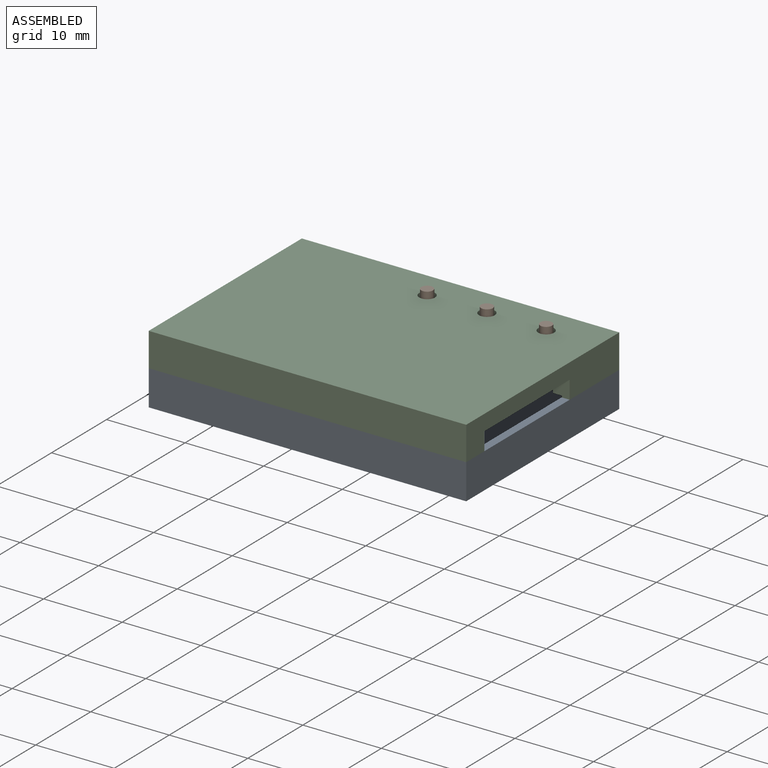
[diagram: assembled view]
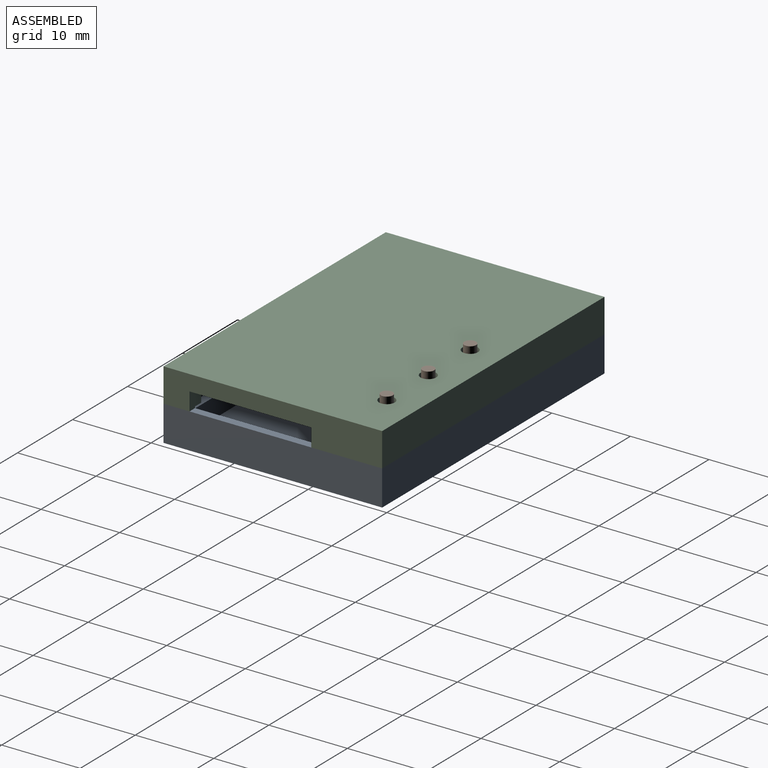
[diagram: assembled view, second angle]
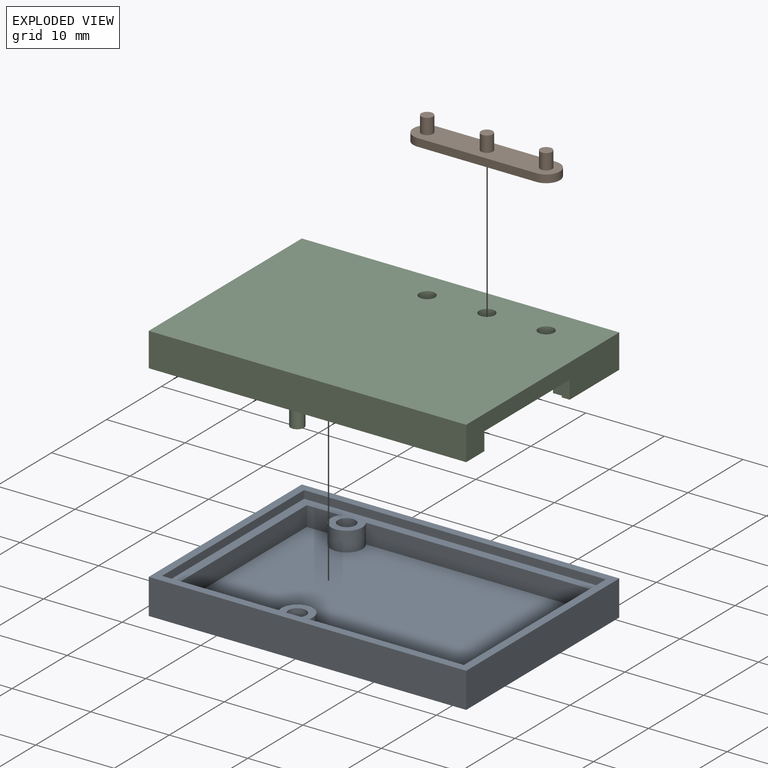
[diagram: exploded view]
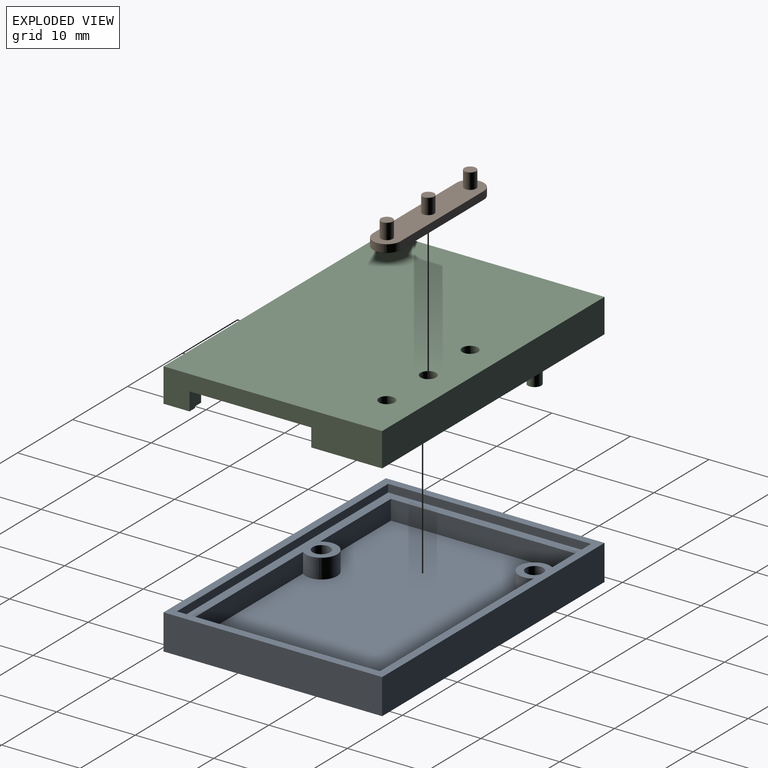
[diagram: exploded view, second angle]
ASSEMBLY  parts=3 mates=2
PART A: 24 faces, bbox 40.4x27.8x4.5 mm
  f0: plane 4.26x2.5mm, normal (0,-1,0), area 10.7mm2, adj f1,f8,f10,f12
  f1: cylinder r=2mm len=4mm, axis (0,0,-1), area 21.9mm2, adj f0,f2,f10,f12
  f2: plane 28.64x2.5mm, normal (0,-1,0), area 71.6mm2, adj f1,f3,f10,f12
  f3: plane 23.58x2.5mm, normal (-1,0,0), area 59mm2, adj f2,f4,f10,f12
  f4: plane 20.19x2.5mm, normal (0,1,0), area 50.5mm2, adj f3,f5,f10,f12
  f5: cylinder r=2mm len=4mm, axis (0,0,-1), area 22.5mm2, adj f4,f6,f10,f12
  f6: plane 12.87x2.5mm, normal (0,1,0), area 32.2mm2, adj f5,f8,f10,f12
  f7: cylinder r=1.12mm len=2.5mm, axis (0,0,-1), area 17.7mm2, adj f10,f11
  f8: plane 23.58x2.5mm, normal (1,0,0), area 59mm2, adj f0,f6,f10,f12
  f9: cylinder r=1.12mm len=2.5mm, axis (0,0,-1), area 17.7mm2, adj f10,f13
  f10: plane 38.41x25.83mm, normal (0,0,1), area 153.1mm2, adj f0,f1,f2,f3,f4,f5,f6,f7
  f11: plane 2.25x2.25mm, normal (0,0,1), area 4mm2, adj f7
  f12: plane 36.16x23.58mm, normal (0,0,1), area 831mm2, adj f0,f1,f2,f3,f4,f5,f6,f8
  f13: plane 2.25x2.25mm, normal (0,0,1), area 4mm2, adj f9
  f14: plane 25.83x1mm, normal (1,0,0), area 25.8mm2, adj f10,f15,f17,f18
  f15: plane 38.41x1mm, normal (0,1,0), area 38.4mm2, adj f10,f14,f16,f18
  f16: plane 25.83x1mm, normal (-1,0,0), area 25.8mm2, adj f10,f15,f17,f18
  f17: plane 38.41x1mm, normal (0,-1,0), area 38.4mm2, adj f10,f14,f16,f18
  f18: plane 40.41x27.83mm, normal (0,0,1), area 132.5mm2, adj f14,f15,f16,f17,f20,f21,f22,f23
  f19: plane 40.41x27.83mm, normal (0,0,-1), area 1124.6mm2, adj f20,f21,f22,f23
  f20: plane 27.83x4.5mm, normal (1,0,0), area 125.2mm2, adj f18,f19,f21,f23
  f21: plane 40.41x4.5mm, normal (0,-1,0), area 181.8mm2, adj f18,f19,f20,f22
  f22: plane 27.83x4.5mm, normal (-1,0,0), area 125.2mm2, adj f18,f19,f21,f23
  f23: plane 40.41x4.5mm, normal (0,1,0), area 181.8mm2, adj f18,f19,f20,f22
PART B: 12 faces, bbox 18.7x3.5x3 mm
  f0: cylinder r=1.75mm len=3.5mm, axis (0,0,-1), area 5.5mm2, adj f1,f3,f4,f5
  f1: plane 15.15x1mm, normal (0,-1,0), area 15.1mm2, adj f0,f2,f4,f5
  f2: cylinder r=1.75mm len=3.5mm, axis (0,0,-1), area 5.6mm2, adj f1,f3,f4,f5
  f3: plane 15.08x1mm, normal (0,1,0), area 15.1mm2, adj f0,f2,f4,f5
  f4: plane 18.65x3.5mm, normal (0,0,1), area 57.3mm2, adj f0,f1,f2,f3,f6,f8,f10
  f5: plane 18.65x3.5mm, normal (0,0,-1), area 62.6mm2, adj f0,f1,f2,f3
  f6: cylinder r=0.75mm len=2mm, axis (0,0,-1), area 9.4mm2, adj f4,f7
  f7: plane 1.5x1.5mm, normal (0,0,1), area 1.8mm2, adj f6
  f8: cylinder r=0.75mm len=2mm, axis (0,0,-1), area 9.4mm2, adj f4,f9
  f9: plane 1.5x1.5mm, normal (0,0,1), area 1.8mm2, adj f8
  f10: cylinder r=0.75mm len=2mm, axis (0,0,-1), area 9.4mm2, adj f4,f11
  f11: plane 1.5x1.5mm, normal (0,0,1), area 1.8mm2, adj f10
PART C: 36 faces, bbox 40.4x27.8x7.8 mm
  f0: plane 38.29x25.83mm, normal (0,0,-1), area 883.9mm2, adj f2,f4,f5,f7,f9,f10,f11,f12
  f1: plane 40.41x4.3mm, normal (0,1,0), area 173.8mm2, adj f2,f6,f8,f31
  f2: plane 27.83x4.3mm, normal (-1,0,0), area 38.6mm2, adj f0,f1,f3,f8,f25,f26,f29,f31
  f3: plane 40.41x4.3mm, normal (0,-1,0), area 173.8mm2, adj f2,f6,f8,f26
  f4: cylinder r=1mm len=2mm, axis (0,0,-1), area 6.3mm2, adj f0,f8
  f5: cylinder r=1mm len=2mm, axis (0,0,-1), area 6.3mm2, adj f0,f8
  f6: plane 27.83x4.3mm, normal (1,0,0), area 84mm2, adj f1,f3,f8,f13,f18,f21,f26,f31
  f7: cylinder r=1mm len=2mm, axis (0,0,-1), area 6.3mm2, adj f0,f8
  f8: plane 40.41x27.83mm, normal (0,0,1), area 1115.2mm2, adj f1,f2,f3,f4,f5,f6,f7
  f9: plane 20.19x3.1mm, normal (0,1,0), area 62.6mm2, adj f0,f10,f14,f15
  f10: cylinder r=2mm len=4mm, axis (0,0,1), area 27.9mm2, adj f0,f9,f11,f15
  f11: plane 8.98x3.1mm, normal (0,1,0), area 27.8mm2, adj f0,f10,f12,f15
  f12: plane 3.1x1.13mm, normal (-1,0,0), area 3.5mm2, adj f0,f11,f15,f22
  f13: plane 2.3x2.13mm, normal (0,1,0), area 4.7mm2, adj f6,f14,f15,f21,f23,f26
  f14: plane 23.58x3.1mm, normal (-1,0,0), area 40.5mm2, adj f0,f9,f13,f15,f17,f18,f20,f21
  f15: plane 33.4x4.39mm, normal (0,0,-1), area 47.6mm2, adj f9,f10,f11,f12,f13,f14,f22,f23
  f16: cylinder r=2mm len=4mm, axis (0,0,1), area 23.3mm2, adj f0,f17,f19,f20
  f17: plane 28.64x3.1mm, normal (0,-1,0), area 88.8mm2, adj f0,f14,f16,f20
  f18: plane 2.3x2.13mm, normal (0,-1,0), area 4.7mm2, adj f6,f14,f20,f21,f28,f31
  f19: plane 3.1x2.29mm, normal (-1,0,0), area 7.1mm2, adj f0,f16,f20,f27
  f20: plane 33.4x8.03mm, normal (0,0,-1), area 53.8mm2, adj f14,f16,f17,f18,f19,f27,f28,f34
  f21: plane 15.5x2.13mm, normal (0,0,-1), area 32.9mm2, adj f6,f13,f14,f18
  f22: plane 38.41x3.3mm, normal (0,1,0), area 23.2mm2, adj f0,f12,f15,f23,f24,f26
  f23: plane 2.31x0.2mm, normal (-1,0,0), area 0.5mm2, adj f13,f15,f22,f26
  f24: plane 3.3x0.63mm, normal (1,0,0), area 2.1mm2, adj f0,f22,f25,f26
  f25: plane 3.3x1mm, normal (0,1,0), area 3.3mm2, adj f0,f2,f24,f26
  f26: plane 40.41x3.31mm, normal (0,0,-1), area 43.3mm2, adj f2,f3,f6,f13,f22,f23,f24,f25
  f27: plane 38.41x3.3mm, normal (0,-1,0), area 23.2mm2, adj f0,f19,f20,f28,f30,f31
  f28: plane 8.03x0.2mm, normal (-1,0,0), area 1.6mm2, adj f18,f20,f27,f31
  f29: plane 3.3x1mm, normal (0,-1,0), area 3.3mm2, adj f0,f2,f30,f31
  f30: plane 3.3x0.63mm, normal (1,0,0), area 2.1mm2, adj f0,f27,f29,f31
  f31: plane 40.41x9.03mm, normal (0,0,-1), area 49.1mm2, adj f1,f2,f6,f18,f27,f28,f29,f30
  f32: cylinder r=0.85mm len=3.7mm, axis (0,0,1), area 19.8mm2, adj f15,f33
  f33: plane 1.7x1.7mm, normal (0,0,-1), area 2.3mm2, adj f32
  f34: cylinder r=0.85mm len=3.7mm, axis (0,0,1), area 19.8mm2, adj f20,f35
  f35: plane 1.7x1.7mm, normal (0,0,-1), area 2.3mm2, adj f34
PLACE A t=(3.45,-7.36,2.17)mm
PLACE B t=(3.45,-7.36,7.72)mm
PLACE C t=(3.45,-7.36,8.97)mm
MATE parallel C.f31 <-> A.f18  axis (0,0,-1) through (42.73,19.34,5.67)mm
MATE pin_slot B.f8 <-> C.f4  axis (0,0,1) through (28.67,15.37,10.72)mm
